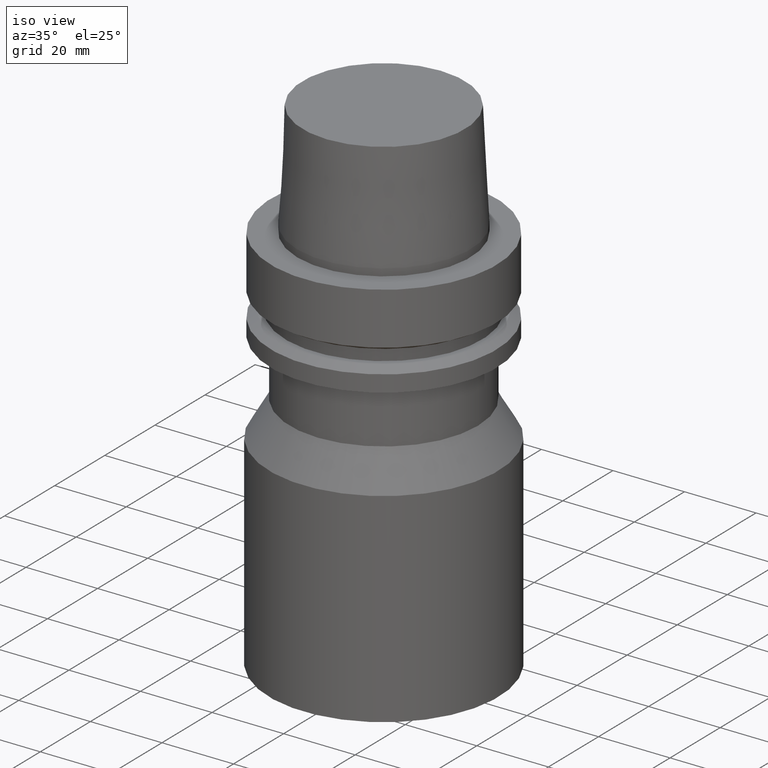
[diagram: clean part render]
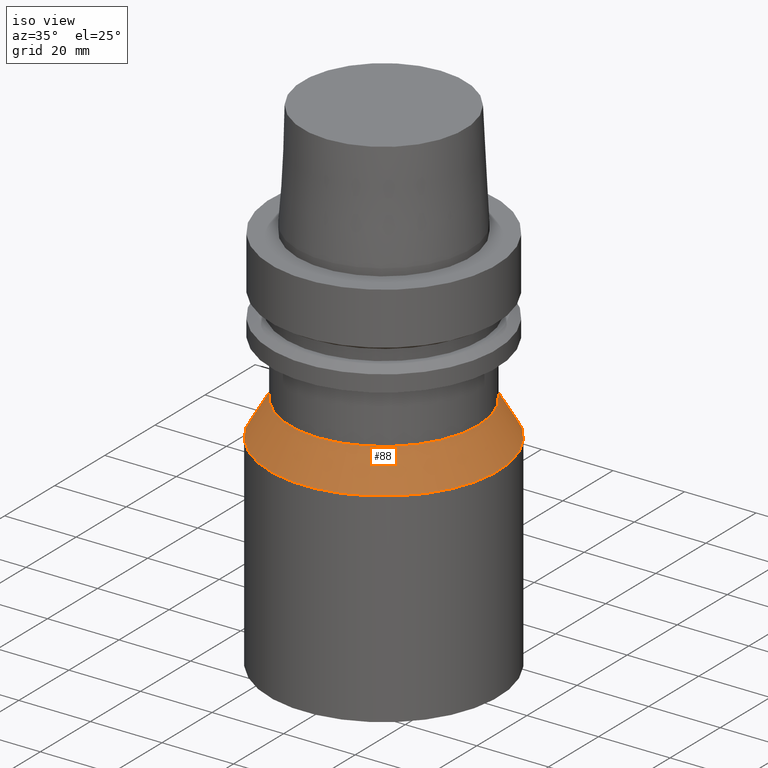
[diagram: same view with one face highlighted and labeled with its STEP entity id]
A machine part, iso view. The second image highlights one B-rep face of the part: STEP entity #88.
In plain terms, the highlighted conical surface has half-angle 30 deg.
Its self-contained STEP definition (entity closure, byte-faithful):
#88=ADVANCED_FACE('',(#130,#131),#132,.T.);
#130=FACE_BOUND('',#176,.T.);
#131=FACE_BOUND('',#177,.T.);
#132=CONICAL_SURFACE('',#178,29.15,0.523598775598298);
#176=EDGE_LOOP('',(#248));
#177=EDGE_LOOP('',(#249));
#178=AXIS2_PLACEMENT_3D('',#250,#251,#252);
#248=ORIENTED_EDGE('',*,*,#275,.F.);
#249=ORIENTED_EDGE('',*,*,#274,.T.);
#250=CARTESIAN_POINT('',(2.87402222124604E-015,5.74804444249208E-015,-46.9363448015713));
#251=DIRECTION('',(6.12323399573677E-017,1.22464679914735E-016,-1.0));
#252=DIRECTION('',(-1.23259516440783E-032,1.0,1.22464679914735E-016));
#274=EDGE_CURVE('',#301,#301,#302,.T.);
#275=EDGE_CURVE('',#303,#303,#304,.T.);
#301=VERTEX_POINT('',#331);
#302=CIRCLE('',#332,26.3);
#303=VERTEX_POINT('',#333);
#304=CIRCLE('',#334,32.0);
#331=CARTESIAN_POINT('',(2.57175827820944E-015,26.3,-42.0));
#332=AXIS2_PLACEMENT_3D('',#373,#374,#375);
#333=CARTESIAN_POINT('',(3.17628616428264E-015,32.0,-51.8726896031426));
#334=AXIS2_PLACEMENT_3D('',#376,#377,#378);
#373=CARTESIAN_POINT('',(2.57175827820944E-015,5.14351655641888E-015,-42.0));
#374=DIRECTION('',(6.12323399573677E-017,1.22464679914735E-016,-1.0));
#375=DIRECTION('',(-1.23259516440783E-032,1.0,1.22464679914735E-016));
#376=CARTESIAN_POINT('',(3.17628616428264E-015,6.35257232856527E-015,-51.8726896031426));
#377=DIRECTION('',(6.12323399573677E-017,1.22464679914735E-016,-1.0));
#378=DIRECTION('',(-1.23259516440783E-032,1.0,1.22464679914735E-016));